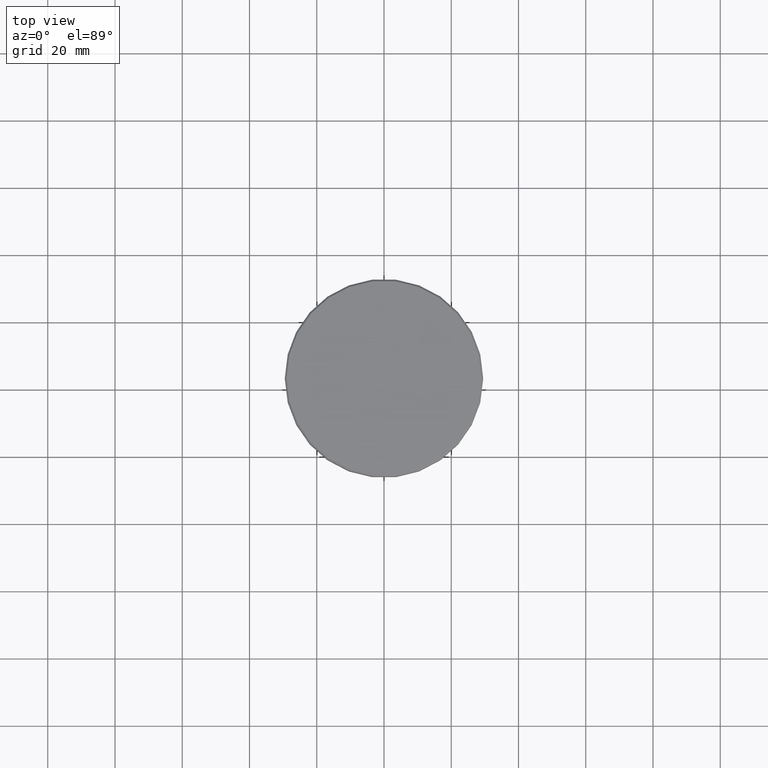
[diagram: clean part render]
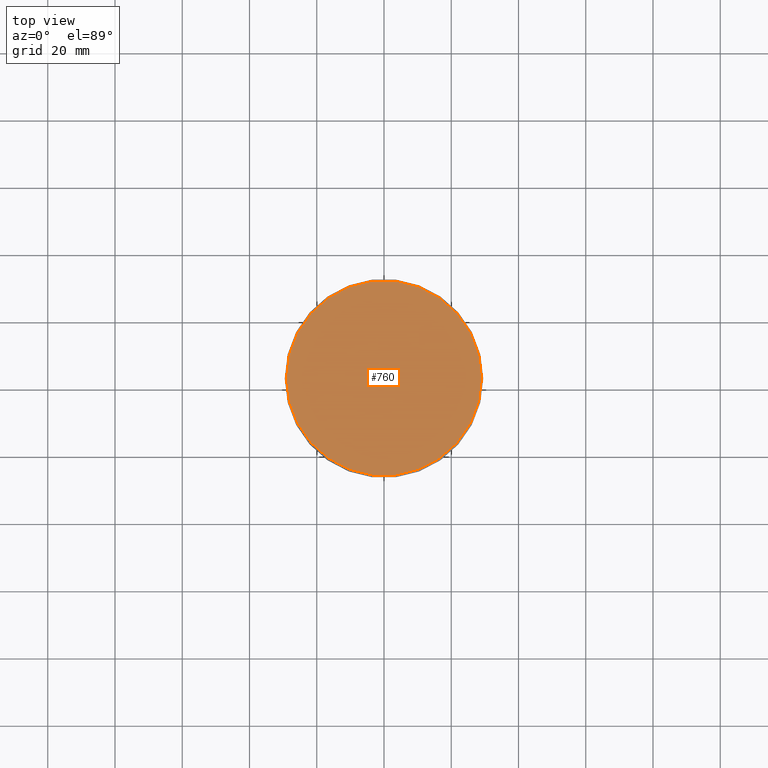
[diagram: same view with one face highlighted and labeled with its STEP entity id]
A machine part, top view. The second image highlights one B-rep face of the part: STEP entity #760.
In plain terms, the highlighted planar face has unit normal (0, -0, 1).
Its self-contained STEP definition (entity closure, byte-faithful):
#41 = EDGE_CURVE ( 'NONE', #141, #639, #634, .T. ) ;
#56 = CARTESIAN_POINT ( 'NONE',  ( 0.000000000000000000, 0.000000000000000000, 0.000000000000000000 ) ) ;
#123 = CARTESIAN_POINT ( 'NONE',  ( 0.000000000000000000, 0.000000000000000000, 0.000000000000000000 ) ) ;
#141 = VERTEX_POINT ( 'NONE', #663 ) ;
#197 = CARTESIAN_POINT ( 'NONE',  ( 0.000000000000000000, 0.000000000000000000, 0.000000000000000000 ) ) ;
#246 = DIRECTION ( 'NONE',  ( -0.000000000000000000, -0.000000000000000000, 1.000000000000000000 ) ) ;
#286 = DIRECTION ( 'NONE',  ( -0.000000000000000000, -0.000000000000000000, 1.000000000000000000 ) ) ;
#365 = DIRECTION ( 'NONE',  ( 1.000000000000000000, 0.000000000000000000, 0.000000000000000000 ) ) ;
#379 = EDGE_CURVE ( 'NONE', #639, #141, #1023, .T. ) ;
#407 = AXIS2_PLACEMENT_3D ( 'NONE', #123, #476, #647 ) ;
#476 = DIRECTION ( 'NONE',  ( 0.000000000000000000, -0.000000000000000000, 1.000000000000000000 ) ) ;
#581 = FACE_OUTER_BOUND ( 'NONE', #984, .T. ) ;
#601 = DIRECTION ( 'NONE',  ( 1.000000000000000000, 0.000000000000000000, 0.000000000000000000 ) ) ;
#634 = CIRCLE ( 'NONE', #788, 29.00000000000002487 ) ;
#639 = VERTEX_POINT ( 'NONE', #1015 ) ;
#647 = DIRECTION ( 'NONE',  ( 1.000000000000000000, 0.000000000000000000, 0.000000000000000000 ) ) ;
#663 = CARTESIAN_POINT ( 'NONE',  ( 29.00000000000002487, 3.582091887506009394E-15, 0.000000000000000000 ) ) ;
#760 = ADVANCED_FACE ( 'NONE', ( #581 ), #1147, .T. ) ;
#768 = ORIENTED_EDGE ( 'NONE', *, *, #41, .T. ) ;
#788 = AXIS2_PLACEMENT_3D ( 'NONE', #197, #286, #365 ) ;
#900 = ORIENTED_EDGE ( 'NONE', *, *, #379, .T. ) ;
#979 = AXIS2_PLACEMENT_3D ( 'NONE', #56, #246, #601 ) ;
#984 = EDGE_LOOP ( 'NONE', ( #900, #768 ) ) ;
#1015 = CARTESIAN_POINT ( 'NONE',  ( -29.00000000000002487, 0.000000000000000000, 0.000000000000000000 ) ) ;
#1023 = CIRCLE ( 'NONE', #979, 29.00000000000002487 ) ;
#1147 = PLANE ( 'NONE',  #407 ) ;